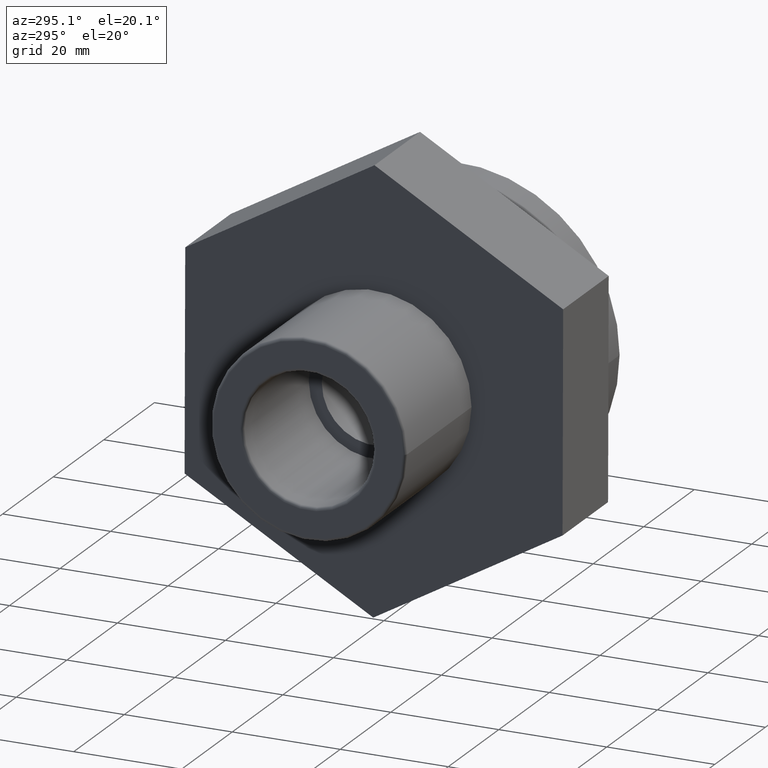
[diagram: clean part render]
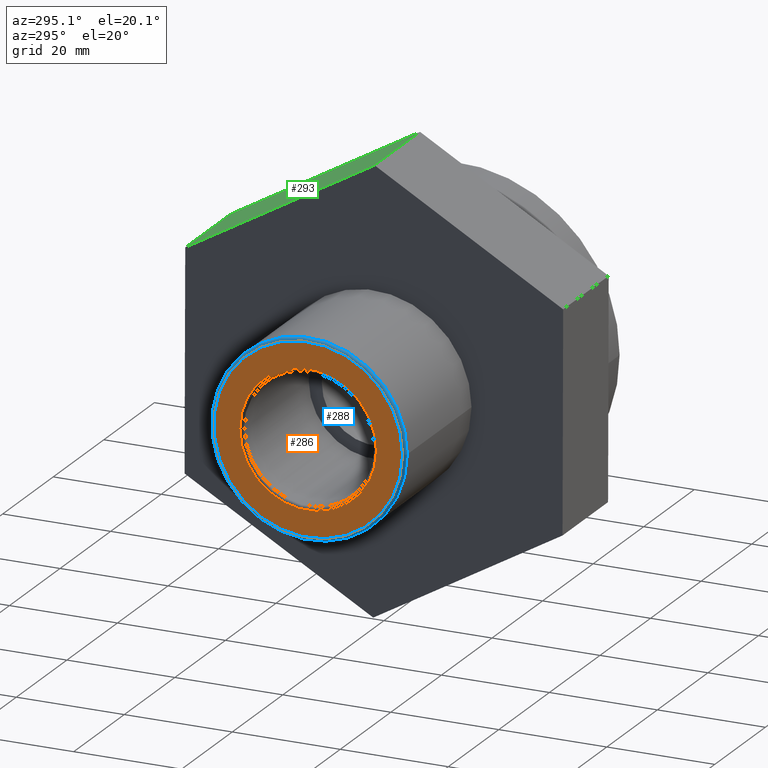
[diagram: same view with three faces highlighted in distinct colors, each labeled with its STEP entity id]
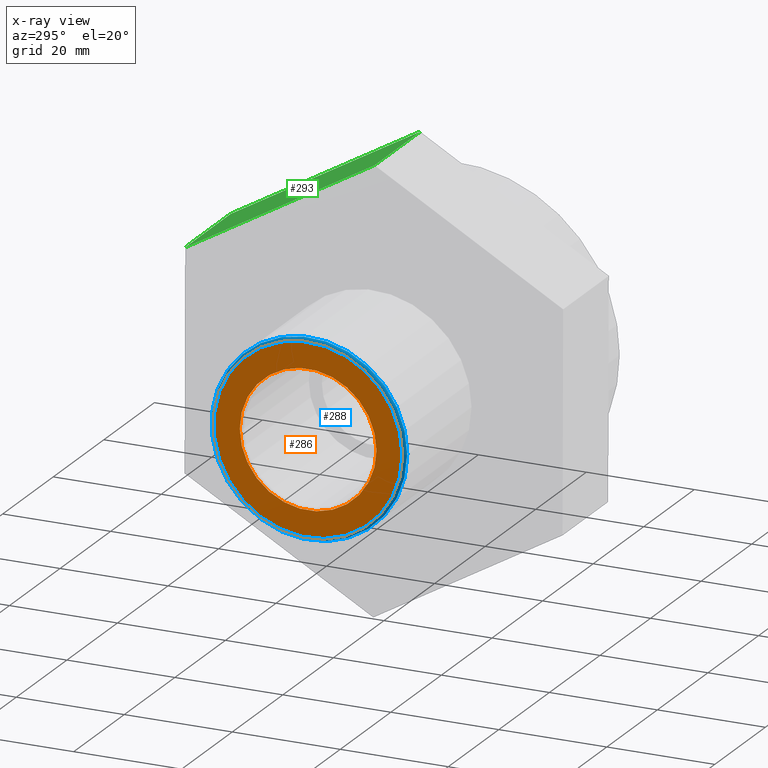
[diagram: x-ray of the same camera — body ghosted, the three highlighted faces saturated]
A machine part, auxiliary view with three faces highlighted in distinct colors.
The next image is the same camera in x-ray (body ghosted, the three faces saturated) — at least one of them is partly hidden behind the body in this view.
Their STEP definitions:

[orange] entity #286 — the highlighted planar face has unit normal (-1, -0, 0).
#57=PLANE('',#317);
#74=FACE_BOUND('',#117,.T.);
#89=FACE_OUTER_BOUND('',#116,.T.);
#116=EDGE_LOOP('',(#224));
#117=EDGE_LOOP('',(#225));
#146=CIRCLE('',#315,12.65464);
#148=CIRCLE('',#318,17.49161);
#160=VERTEX_POINT('',#447);
#162=VERTEX_POINT('',#452);
#186=EDGE_CURVE('',#160,#160,#146,.T.);
#188=EDGE_CURVE('',#162,#162,#148,.T.);
#224=ORIENTED_EDGE('',*,*,#188,.F.);
#225=ORIENTED_EDGE('',*,*,#186,.F.);
#286=ADVANCED_FACE('',(#89,#74),#57,.T.);
#315=AXIS2_PLACEMENT_3D('',#448,#364,#365);
#317=AXIS2_PLACEMENT_3D('',#451,#368,#369);
#318=AXIS2_PLACEMENT_3D('',#453,#370,#371);
#364=DIRECTION('center_axis',(-1.,-1.83697019872103E-16,0.));
#365=DIRECTION('ref_axis',(-1.83697019872103E-16,1.,6.12323399573677E-17));
#368=DIRECTION('center_axis',(-1.,-1.83697019872103E-16,0.));
#369=DIRECTION('ref_axis',(0.,0.,1.));
#370=DIRECTION('center_axis',(1.,1.83697019872103E-16,0.));
#371=DIRECTION('ref_axis',(-1.83697019872103E-16,1.,6.12323399573677E-17));
#447=CARTESIAN_POINT('',(-30.,-12.65464,7.74873218518103E-16));
#448=CARTESIAN_POINT('Origin',(-30.,-9.70668691971167E-31,0.));
#451=CARTESIAN_POINT('Origin',(-30.,-12.0585,0.));
#452=CARTESIAN_POINT('',(-30.,-17.49161,-3.21315662976508E-15));
#453=CARTESIAN_POINT('Origin',(-30.,-4.77630626208034E-31,0.));

[blue] entity #288 — the highlighted toroidal blend (fillet) surface has major radius 17.4916 mm and minor (blend) radius 0.5961 mm.
#76=FACE_BOUND('',#121,.T.);
#91=FACE_OUTER_BOUND('',#120,.T.);
#120=EDGE_LOOP('',(#228));
#121=EDGE_LOOP('',(#229));
#148=CIRCLE('',#318,17.49161);
#150=CIRCLE('',#322,18.08775);
#162=VERTEX_POINT('',#452);
#164=VERTEX_POINT('',#458);
#188=EDGE_CURVE('',#162,#162,#148,.T.);
#190=EDGE_CURVE('',#164,#164,#150,.T.);
#228=ORIENTED_EDGE('',*,*,#190,.T.);
#229=ORIENTED_EDGE('',*,*,#188,.T.);
#279=TOROIDAL_SURFACE('',#321,17.49161,0.59614);
#288=ADVANCED_FACE('',(#91,#76),#279,.T.);
#318=AXIS2_PLACEMENT_3D('',#453,#370,#371);
#321=AXIS2_PLACEMENT_3D('',#457,#376,#377);
#322=AXIS2_PLACEMENT_3D('',#459,#378,#379);
#370=DIRECTION('center_axis',(1.,1.83697019872103E-16,0.));
#371=DIRECTION('ref_axis',(-1.83697019872103E-16,1.,6.12323399573677E-17));
#376=DIRECTION('center_axis',(-1.,-1.83697019872103E-16,0.));
#377=DIRECTION('ref_axis',(0.,0.,1.));
#378=DIRECTION('center_axis',(-1.,-1.83697019872103E-16,0.));
#379=DIRECTION('ref_axis',(-1.84139490753436E-16,1.,6.12323399573677E-17));
#452=CARTESIAN_POINT('',(-30.,-17.49161,-3.21315662976508E-15));
#453=CARTESIAN_POINT('Origin',(-30.,-4.77630626208034E-31,0.));
#457=CARTESIAN_POINT('Origin',(-29.40386,1.09509141426555E-16,0.));
#458=CARTESIAN_POINT('',(-29.40386,-18.08775,1.10755525706388E-15));
#459=CARTESIAN_POINT('Origin',(-29.40386,1.09509141426555E-16,0.));

[green] entity #293 — the highlighted planar face has unit normal (-0, 0.4974, 0.8675).
#25=LINE('',#487,#43);
#26=LINE('',#489,#44);
#27=LINE('',#491,#45);
#28=LINE('',#492,#46);
#43=VECTOR('',#402,40.4145188432738);
#44=VECTOR('',#403,18.);
#45=VECTOR('',#404,40.4145188432738);
#46=VECTOR('',#405,18.);
#61=PLANE('',#328);
#96=FACE_OUTER_BOUND('',#127,.T.);
#127=EDGE_LOOP('',(#244,#245,#246,#247));
#174=VERTEX_POINT('',#485);
#175=VERTEX_POINT('',#486);
#176=VERTEX_POINT('',#488);
#177=VERTEX_POINT('',#490);
#202=EDGE_CURVE('',#174,#175,#25,.T.);
#203=EDGE_CURVE('',#176,#175,#26,.T.);
#204=EDGE_CURVE('',#176,#177,#27,.T.);
#205=EDGE_CURVE('',#177,#174,#28,.T.);
#244=ORIENTED_EDGE('',*,*,#202,.T.);
#245=ORIENTED_EDGE('',*,*,#203,.F.);
#246=ORIENTED_EDGE('',*,*,#204,.T.);
#247=ORIENTED_EDGE('',*,*,#205,.T.);
#293=ADVANCED_FACE('',(#96),#61,.T.);
#328=AXIS2_PLACEMENT_3D('',#484,#400,#401);
#400=DIRECTION('center_axis',(-8.18162941954272E-17,0.49743157326934,0.867503216083255));
#401=DIRECTION('ref_axis',(-1.77635683940025E-16,0.867503216083254,-0.49743157326934));
#402=DIRECTION('',(1.59357755523959E-16,-0.867503216083254,0.49743157326934));
#403=DIRECTION('',(-1.,-1.64477485129652E-16,0.));
#404=DIRECTION('',(-1.59357755523959E-16,0.867503216083254,-0.49743157326934));
#405=DIRECTION('',(-1.,-1.64477485129652E-16,0.));
#484=CARTESIAN_POINT('Origin',(14.,-0.119757472071776,40.4143414084804));
#485=CARTESIAN_POINT('',(-4.,34.9399676009255,20.3108837173474));
#486=CARTESIAN_POINT('',(-4.,-0.119757472071779,40.4143414084804));
#487=CARTESIAN_POINT('',(-4.,8.64517379617755,35.3884769856972));
#488=CARTESIAN_POINT('',(14.,-0.119757472071776,40.4143414084804));
#489=CARTESIAN_POINT('',(14.,-0.119757472071776,40.4143414084804));
#490=CARTESIAN_POINT('',(14.,34.9399676009255,20.3108837173474));
#491=CARTESIAN_POINT('',(14.,-0.119757472071776,40.4143414084804));
#492=CARTESIAN_POINT('',(14.,34.9399676009255,20.3108837173474));